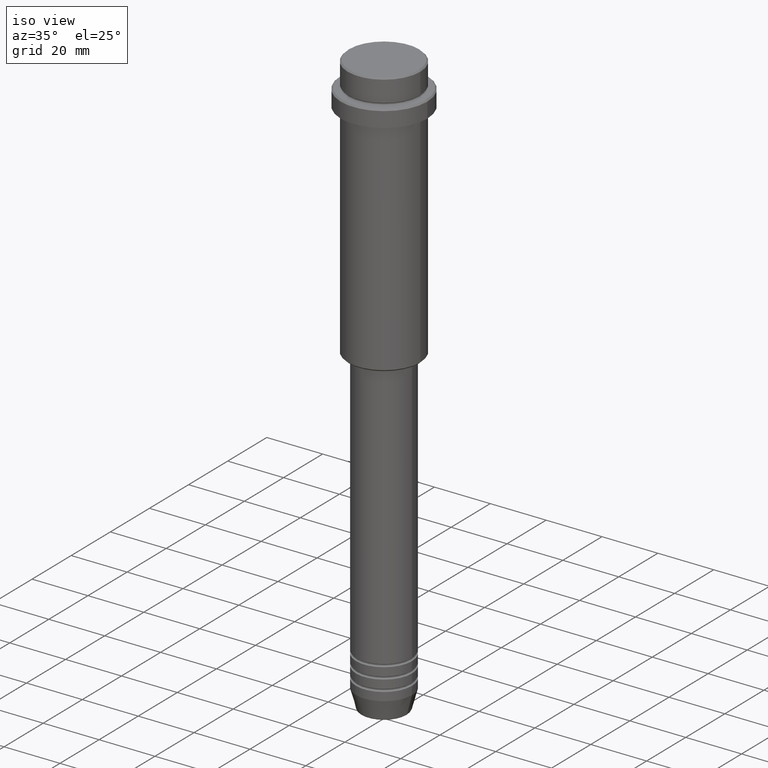
[diagram: clean part render]
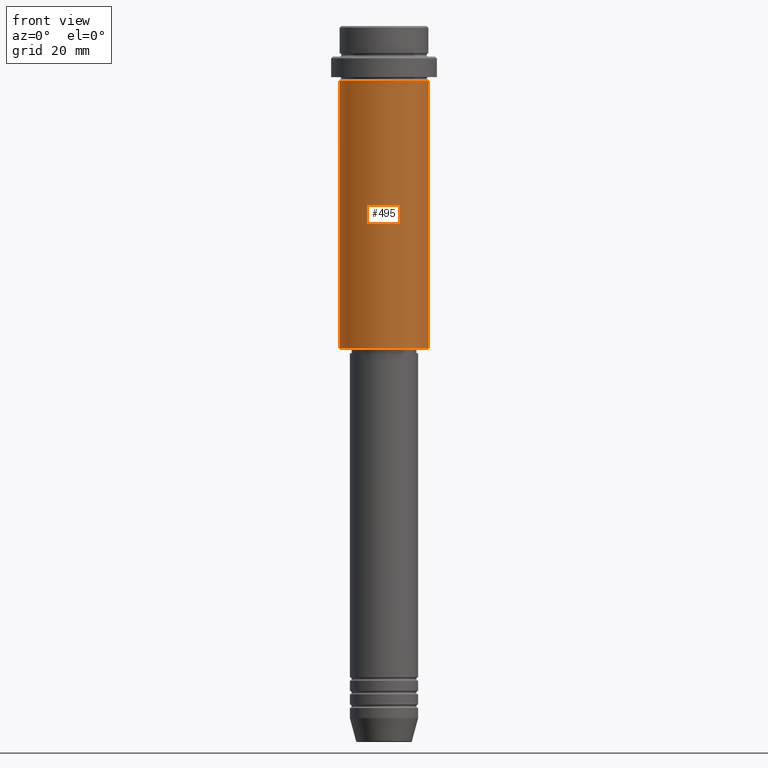
[diagram: tour spotlight — one face highlighted and labeled with its STEP entity id]
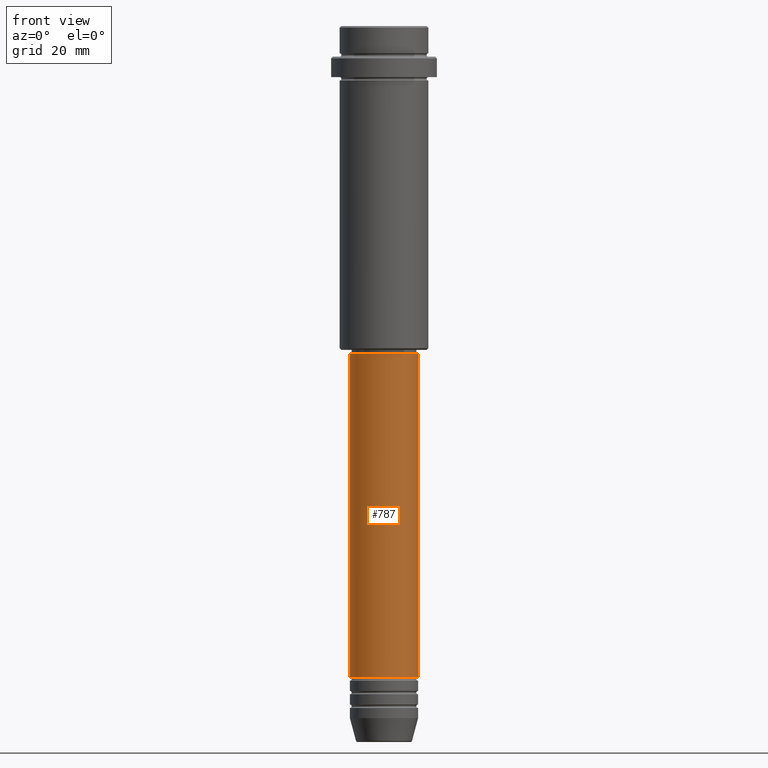
[diagram: tour spotlight — one face highlighted and labeled with its STEP entity id]
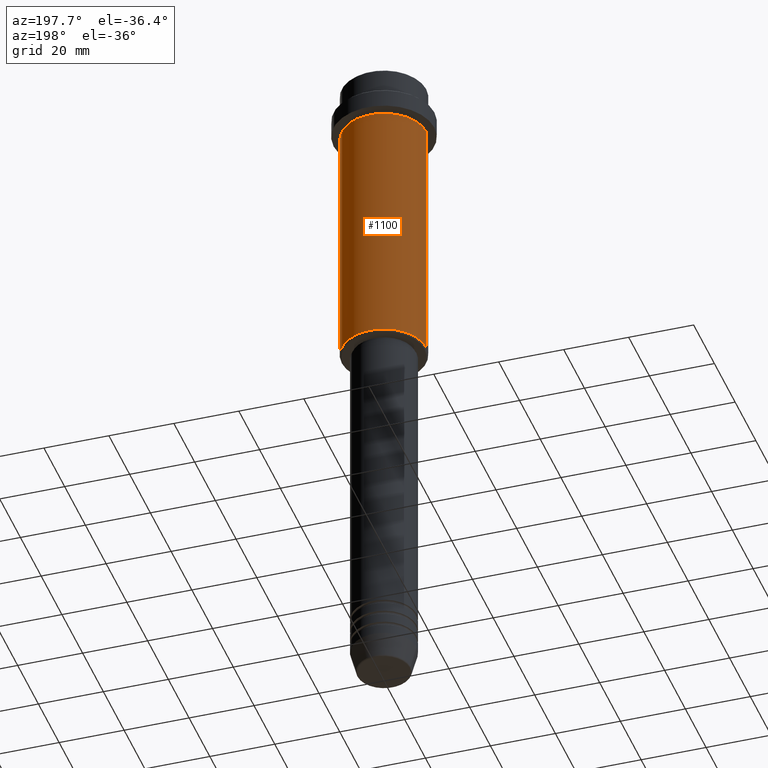
[diagram: tour spotlight — one face highlighted and labeled with its STEP entity id]
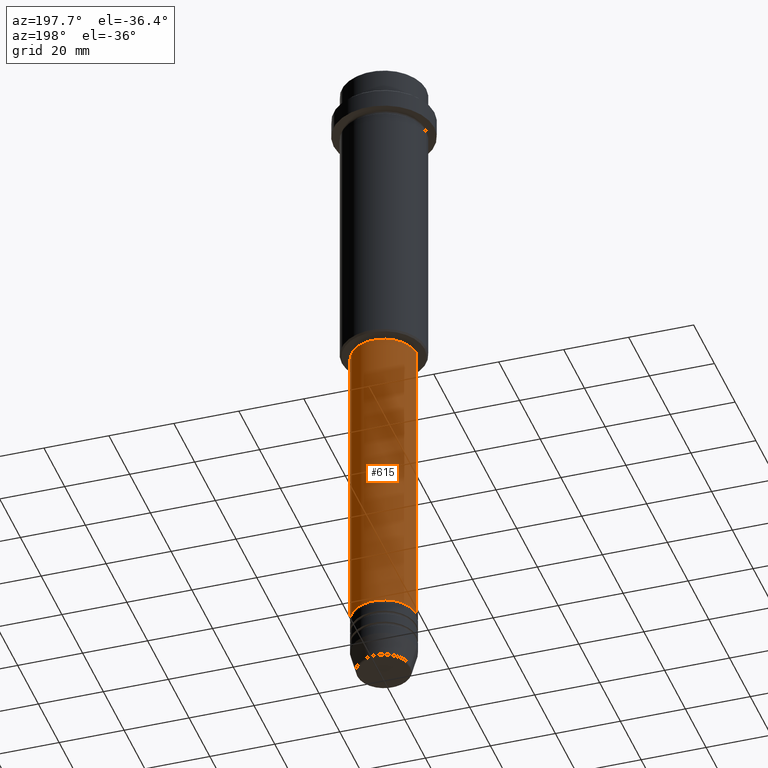
[diagram: tour spotlight — one face highlighted and labeled with its STEP entity id]
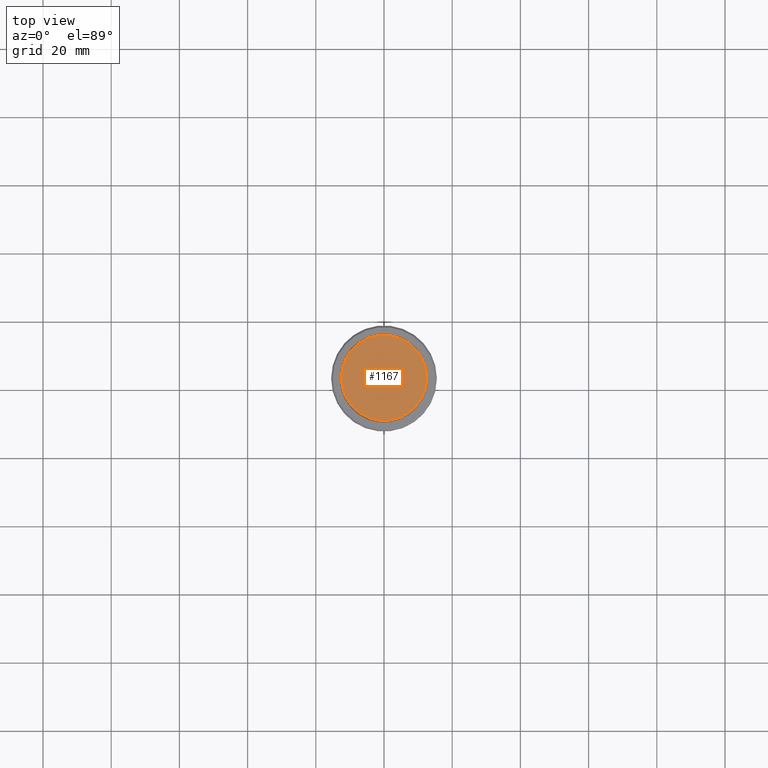
[diagram: tour spotlight — one face highlighted and labeled with its STEP entity id]
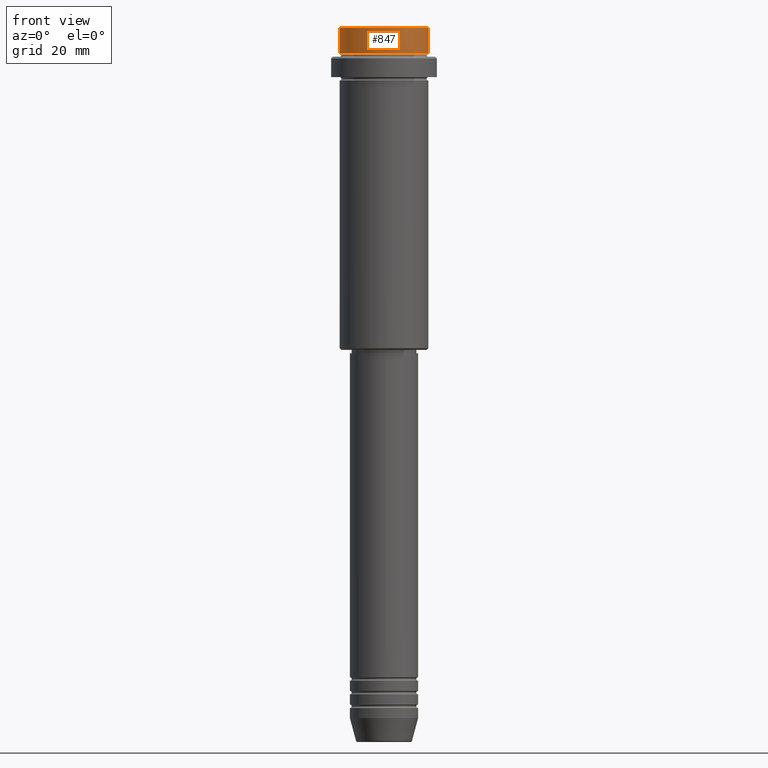
[diagram: tour spotlight — one face highlighted and labeled with its STEP entity id]
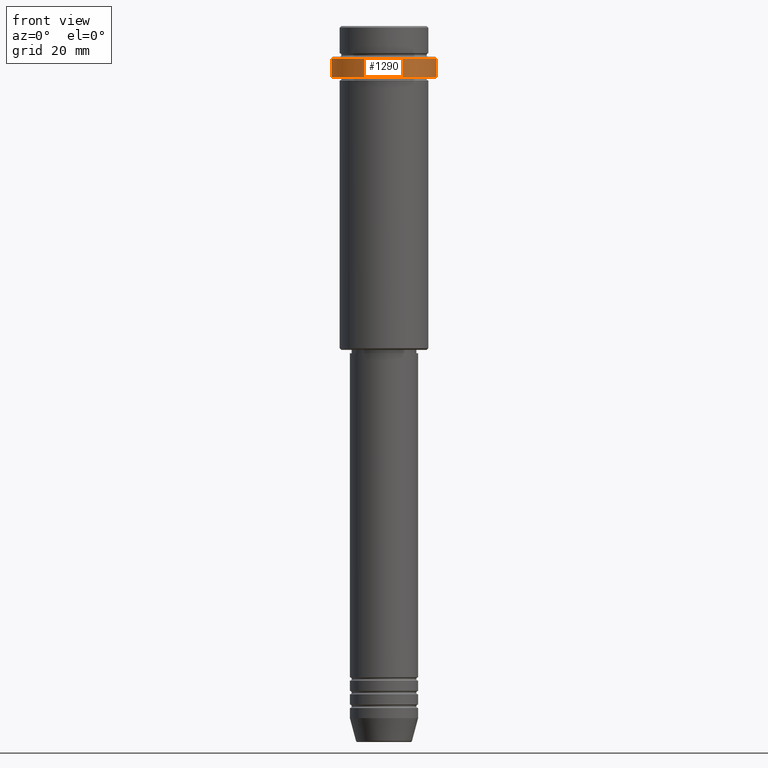
[diagram: tour spotlight — one face highlighted and labeled with its STEP entity id]
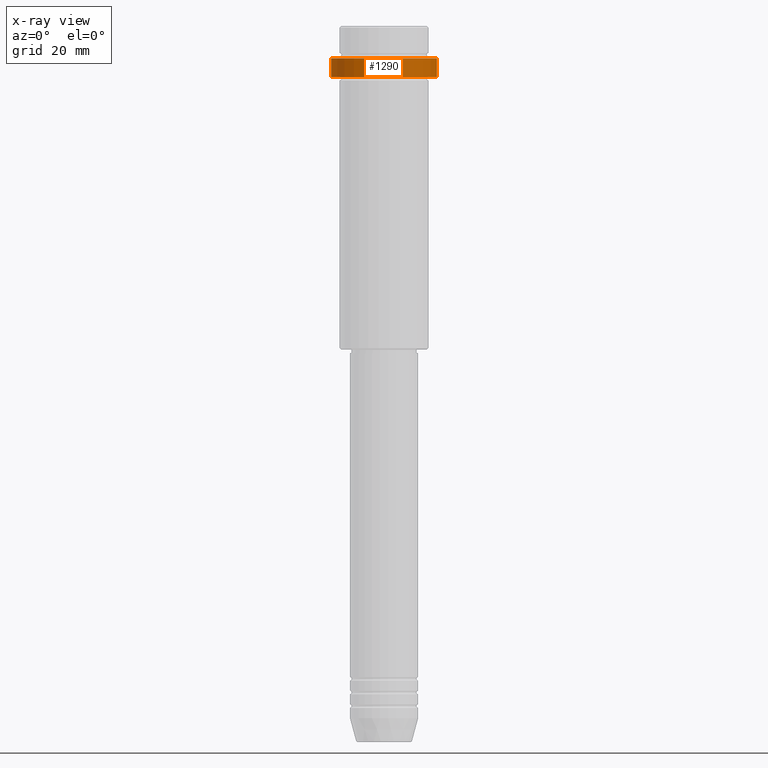
[diagram: x-ray of the same camera — body ghosted, this tour face saturated]
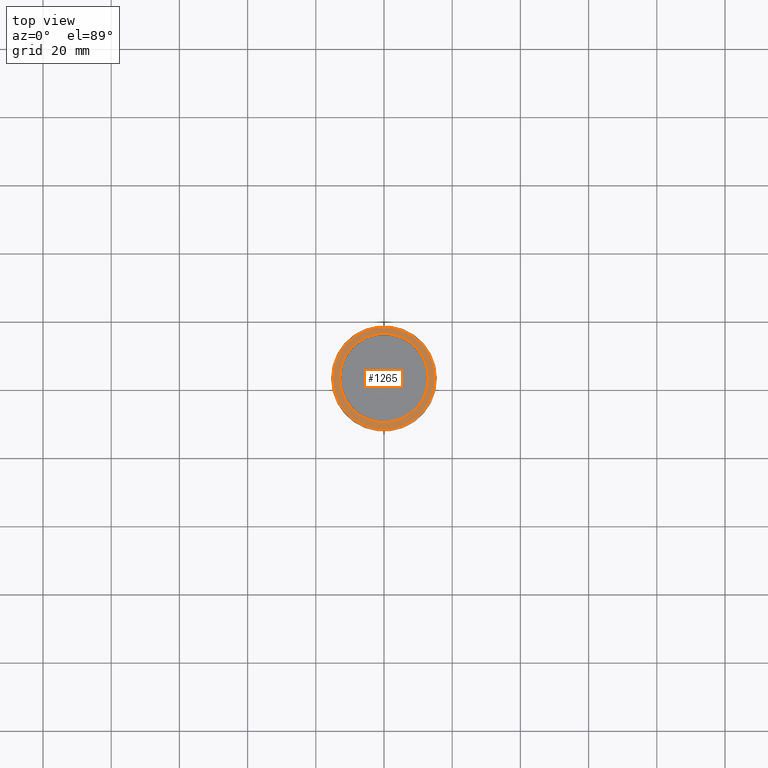
[diagram: tour spotlight — one face highlighted and labeled with its STEP entity id]
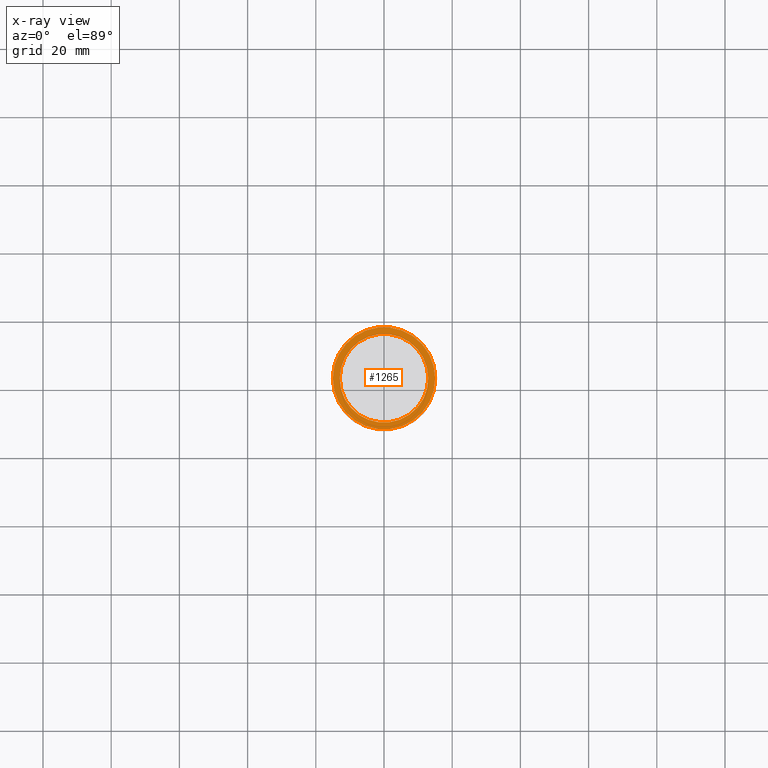
[diagram: x-ray of the same camera — body ghosted, this tour face saturated]
A machine part: a face-by-face anatomy tour. The part has 52 B-rep faces; the first image is the clean iso view, then the 8 largest visible faces are spotlighted one at a time (largest first), each with its STEP entity span.

Face 1 — front view, entity #495. In plain terms, the highlighted cylindrical surface (partial cylindrical patch) has radius 13 mm, axis along (-0, -0, 1).
Definition (entity closure, byte-faithful):
#8 = CIRCLE ( 'NONE', #791, 13.00000000000000000 ) ;
#16 = DIRECTION ( 'NONE',  ( -0.000000000000000000, -0.000000000000000000, 1.000000000000000000 ) ) ;
#54 = LINE ( 'NONE', #705, #61 ) ;
#61 = VECTOR ( 'NONE', #1355, 1000.000000000000000 ) ;
#73 = FACE_OUTER_BOUND ( 'NONE', #391, .T. ) ;
#131 = ORIENTED_EDGE ( 'NONE', *, *, #337, .F. ) ;
#149 = VERTEX_POINT ( 'NONE', #548 ) ;
#157 = DIRECTION ( 'NONE',  ( -0.000000000000000000, -0.000000000000000000, 1.000000000000000000 ) ) ;
#188 = VERTEX_POINT ( 'NONE', #871 ) ;
#223 = CARTESIAN_POINT ( 'NONE',  ( 0.000000000000000000, 0.000000000000000000, -16.00000000000000000 ) ) ;
#337 = EDGE_CURVE ( 'NONE', #149, #529, #54, .T. ) ;
#350 = EDGE_CURVE ( 'NONE', #520, #188, #494, .T. ) ;
#358 = ORIENTED_EDGE ( 'NONE', *, *, #1249, .T. ) ;
#384 = DIRECTION ( 'NONE',  ( 1.000000000000000000, 0.000000000000000000, 0.000000000000000000 ) ) ;
#391 = EDGE_LOOP ( 'NONE', ( #131, #358, #525, #737 ) ) ;
#483 = CARTESIAN_POINT ( 'NONE',  ( 0.000000000000000000, 0.000000000000000000, -94.49999999999994316 ) ) ;
#494 = LINE ( 'NONE', #1341, #608 ) ;
#495 = ADVANCED_FACE ( 'NONE', ( #73 ), #510, .T. ) ;
#496 = AXIS2_PLACEMENT_3D ( 'NONE', #223, #16, #384 ) ;
#510 = CYLINDRICAL_SURFACE ( 'NONE', #998, 13.00000000000000000 ) ;
#518 = CIRCLE ( 'NONE', #496, 13.00000000000000000 ) ;
#520 = VERTEX_POINT ( 'NONE', #1346 ) ;
#525 = ORIENTED_EDGE ( 'NONE', *, *, #350, .T. ) ;
#529 = VERTEX_POINT ( 'NONE', #1115 ) ;
#548 = CARTESIAN_POINT ( 'NONE',  ( -13.00000000000000000, 1.592040838891559095E-15, -94.49999999999994316 ) ) ;
#608 = VECTOR ( 'NONE', #926, 1000.000000000000000 ) ;
#642 = DIRECTION ( 'NONE',  ( -0.000000000000000000, -0.000000000000000000, 1.000000000000000000 ) ) ;
#705 = CARTESIAN_POINT ( 'NONE',  ( -13.00000000000000000, 1.592040838891559095E-15, 0.000000000000000000 ) ) ;
#737 = ORIENTED_EDGE ( 'NONE', *, *, #1097, .F. ) ;
#791 = AXIS2_PLACEMENT_3D ( 'NONE', #483, #157, #1264 ) ;
#871 = CARTESIAN_POINT ( 'NONE',  ( 13.00000000000000000, 0.000000000000000000, -16.00000000000000000 ) ) ;
#926 = DIRECTION ( 'NONE',  ( -0.000000000000000000, -0.000000000000000000, 1.000000000000000000 ) ) ;
#944 = CARTESIAN_POINT ( 'NONE',  ( 0.000000000000000000, 0.000000000000000000, 0.000000000000000000 ) ) ;
#998 = AXIS2_PLACEMENT_3D ( 'NONE', #944, #642, #1080 ) ;
#1080 = DIRECTION ( 'NONE',  ( 1.000000000000000000, 0.000000000000000000, 0.000000000000000000 ) ) ;
#1097 = EDGE_CURVE ( 'NONE', #529, #188, #518, .T. ) ;
#1115 = CARTESIAN_POINT ( 'NONE',  ( -13.00000000000000000, 1.592040838891559095E-15, -16.00000000000000000 ) ) ;
#1249 = EDGE_CURVE ( 'NONE', #149, #520, #8, .T. ) ;
#1264 = DIRECTION ( 'NONE',  ( -1.000000000000000000, 0.000000000000000000, 0.000000000000000000 ) ) ;
#1341 = CARTESIAN_POINT ( 'NONE',  ( 13.00000000000000000, 0.000000000000000000, 0.000000000000000000 ) ) ;
#1346 = CARTESIAN_POINT ( 'NONE',  ( 13.00000000000000000, 0.000000000000000000, -94.49999999999994316 ) ) ;
#1355 = DIRECTION ( 'NONE',  ( -0.000000000000000000, -0.000000000000000000, 1.000000000000000000 ) ) ;

Face 2 — front view, entity #787. In plain terms, the highlighted cylindrical surface (edge-blend (fillet) strip) has radius 10 mm, axis along (-0, -0, 1).
Definition (entity closure, byte-faithful):
#11 = CARTESIAN_POINT ( 'NONE',  ( 0.000000000000000000, 0.000000000000000000, -96.00000000000000000 ) ) ;
#83 = CIRCLE ( 'NONE', #1112, 10.00000000000000178 ) ;
#89 = EDGE_CURVE ( 'NONE', #576, #355, #83, .T. ) ;
#156 = ORIENTED_EDGE ( 'NONE', *, *, #735, .T. ) ;
#202 = ORIENTED_EDGE ( 'NONE', *, *, #1372, .T. ) ;
#239 = VECTOR ( 'NONE', #750, 1000.000000000000000 ) ;
#284 = VECTOR ( 'NONE', #1293, 1000.000000000000000 ) ;
#332 = DIRECTION ( 'NONE',  ( -0.000000000000000000, -0.000000000000000000, 1.000000000000000000 ) ) ;
#355 = VERTEX_POINT ( 'NONE', #382 ) ;
#382 = CARTESIAN_POINT ( 'NONE',  ( 10.00000000000000178, 0.000000000000000000, -96.00000000000000000 ) ) ;
#386 = DIRECTION ( 'NONE',  ( 1.000000000000000000, 0.000000000000000000, 0.000000000000000000 ) ) ;
#395 = AXIS2_PLACEMENT_3D ( 'NONE', #596, #603, #386 ) ;
#405 = CIRCLE ( 'NONE', #395, 10.00000000000000000 ) ;
#426 = EDGE_CURVE ( 'NONE', #1195, #576, #616, .T. ) ;
#576 = VERTEX_POINT ( 'NONE', #1006 ) ;
#596 = CARTESIAN_POINT ( 'NONE',  ( 0.000000000000000000, 0.000000000000000000, -190.9999999999999147 ) ) ;
#603 = DIRECTION ( 'NONE',  ( -0.000000000000000000, -0.000000000000000000, 1.000000000000000000 ) ) ;
#616 = LINE ( 'NONE', #869, #239 ) ;
#662 = CARTESIAN_POINT ( 'NONE',  ( 10.00000000000000178, 0.000000000000000000, 0.000000000000000000 ) ) ;
#699 = DIRECTION ( 'NONE',  ( 1.000000000000000000, 0.000000000000000000, 0.000000000000000000 ) ) ;
#730 = CYLINDRICAL_SURFACE ( 'NONE', #790, 10.00000000000000178 ) ;
#735 = EDGE_CURVE ( 'NONE', #1195, #1236, #405, .T. ) ;
#736 = ORIENTED_EDGE ( 'NONE', *, *, #89, .F. ) ;
#741 = LINE ( 'NONE', #662, #284 ) ;
#750 = DIRECTION ( 'NONE',  ( -0.000000000000000000, -0.000000000000000000, 1.000000000000000000 ) ) ;
#766 = EDGE_LOOP ( 'NONE', ( #936, #156, #202, #736 ) ) ;
#787 = ADVANCED_FACE ( 'NONE', ( #1030 ), #730, .T. ) ;
#790 = AXIS2_PLACEMENT_3D ( 'NONE', #1145, #1384, #699 ) ;
#831 = CARTESIAN_POINT ( 'NONE',  ( 10.00000000000000000, 0.000000000000000000, -190.9999999999999147 ) ) ;
#869 = CARTESIAN_POINT ( 'NONE',  ( -10.00000000000000178, 1.224646799147353454E-15, 0.000000000000000000 ) ) ;
#935 = CARTESIAN_POINT ( 'NONE',  ( -10.00000000000000000, 1.224646799147353256E-15, -190.9999999999999147 ) ) ;
#936 = ORIENTED_EDGE ( 'NONE', *, *, #426, .F. ) ;
#1006 = CARTESIAN_POINT ( 'NONE',  ( -10.00000000000000178, 1.224646799147353454E-15, -96.00000000000000000 ) ) ;
#1030 = FACE_OUTER_BOUND ( 'NONE', #766, .T. ) ;
#1086 = DIRECTION ( 'NONE',  ( 1.000000000000000000, 0.000000000000000000, 0.000000000000000000 ) ) ;
#1112 = AXIS2_PLACEMENT_3D ( 'NONE', #11, #332, #1086 ) ;
#1145 = CARTESIAN_POINT ( 'NONE',  ( 0.000000000000000000, 0.000000000000000000, 0.000000000000000000 ) ) ;
#1195 = VERTEX_POINT ( 'NONE', #935 ) ;
#1236 = VERTEX_POINT ( 'NONE', #831 ) ;
#1293 = DIRECTION ( 'NONE',  ( -0.000000000000000000, -0.000000000000000000, 1.000000000000000000 ) ) ;
#1372 = EDGE_CURVE ( 'NONE', #1236, #355, #741, .T. ) ;
#1384 = DIRECTION ( 'NONE',  ( -0.000000000000000000, -0.000000000000000000, 1.000000000000000000 ) ) ;

Face 3 — auxiliary view, entity #1100. In plain terms, the highlighted cylindrical surface (partial cylindrical patch) has radius 13 mm, axis along (-0, -0, 1).
Definition (entity closure, byte-faithful):
#13 = AXIS2_PLACEMENT_3D ( 'NONE', #938, #438, #1207 ) ;
#54 = LINE ( 'NONE', #705, #61 ) ;
#59 = EDGE_CURVE ( 'NONE', #520, #149, #1200, .T. ) ;
#60 = AXIS2_PLACEMENT_3D ( 'NONE', #917, #826, #1254 ) ;
#61 = VECTOR ( 'NONE', #1355, 1000.000000000000000 ) ;
#75 = FACE_OUTER_BOUND ( 'NONE', #1399, .T. ) ;
#79 = ORIENTED_EDGE ( 'NONE', *, *, #350, .F. ) ;
#98 = DIRECTION ( 'NONE',  ( -0.000000000000000000, -0.000000000000000000, 1.000000000000000000 ) ) ;
#149 = VERTEX_POINT ( 'NONE', #548 ) ;
#188 = VERTEX_POINT ( 'NONE', #871 ) ;
#337 = EDGE_CURVE ( 'NONE', #149, #529, #54, .T. ) ;
#350 = EDGE_CURVE ( 'NONE', #520, #188, #494, .T. ) ;
#409 = EDGE_CURVE ( 'NONE', #188, #529, #610, .T. ) ;
#438 = DIRECTION ( 'NONE',  ( -0.000000000000000000, -0.000000000000000000, 1.000000000000000000 ) ) ;
#494 = LINE ( 'NONE', #1341, #608 ) ;
#517 = ORIENTED_EDGE ( 'NONE', *, *, #337, .T. ) ;
#520 = VERTEX_POINT ( 'NONE', #1346 ) ;
#529 = VERTEX_POINT ( 'NONE', #1115 ) ;
#548 = CARTESIAN_POINT ( 'NONE',  ( -13.00000000000000000, 1.592040838891559095E-15, -94.49999999999994316 ) ) ;
#570 = ORIENTED_EDGE ( 'NONE', *, *, #409, .F. ) ;
#608 = VECTOR ( 'NONE', #926, 1000.000000000000000 ) ;
#610 = CIRCLE ( 'NONE', #13, 13.00000000000000000 ) ;
#705 = CARTESIAN_POINT ( 'NONE',  ( -13.00000000000000000, 1.592040838891559095E-15, 0.000000000000000000 ) ) ;
#820 = CYLINDRICAL_SURFACE ( 'NONE', #60, 13.00000000000000000 ) ;
#826 = DIRECTION ( 'NONE',  ( -0.000000000000000000, -0.000000000000000000, 1.000000000000000000 ) ) ;
#871 = CARTESIAN_POINT ( 'NONE',  ( 13.00000000000000000, 0.000000000000000000, -16.00000000000000000 ) ) ;
#907 = AXIS2_PLACEMENT_3D ( 'NONE', #1072, #98, #1054 ) ;
#917 = CARTESIAN_POINT ( 'NONE',  ( 0.000000000000000000, 0.000000000000000000, 0.000000000000000000 ) ) ;
#918 = ORIENTED_EDGE ( 'NONE', *, *, #59, .T. ) ;
#926 = DIRECTION ( 'NONE',  ( -0.000000000000000000, -0.000000000000000000, 1.000000000000000000 ) ) ;
#938 = CARTESIAN_POINT ( 'NONE',  ( 0.000000000000000000, 0.000000000000000000, -16.00000000000000000 ) ) ;
#1054 = DIRECTION ( 'NONE',  ( -1.000000000000000000, 0.000000000000000000, 0.000000000000000000 ) ) ;
#1072 = CARTESIAN_POINT ( 'NONE',  ( 0.000000000000000000, 0.000000000000000000, -94.49999999999994316 ) ) ;
#1100 = ADVANCED_FACE ( 'NONE', ( #75 ), #820, .T. ) ;
#1115 = CARTESIAN_POINT ( 'NONE',  ( -13.00000000000000000, 1.592040838891559095E-15, -16.00000000000000000 ) ) ;
#1200 = CIRCLE ( 'NONE', #907, 13.00000000000000000 ) ;
#1207 = DIRECTION ( 'NONE',  ( 1.000000000000000000, 0.000000000000000000, 0.000000000000000000 ) ) ;
#1254 = DIRECTION ( 'NONE',  ( 1.000000000000000000, 0.000000000000000000, 0.000000000000000000 ) ) ;
#1341 = CARTESIAN_POINT ( 'NONE',  ( 13.00000000000000000, 0.000000000000000000, 0.000000000000000000 ) ) ;
#1346 = CARTESIAN_POINT ( 'NONE',  ( 13.00000000000000000, 0.000000000000000000, -94.49999999999994316 ) ) ;
#1355 = DIRECTION ( 'NONE',  ( -0.000000000000000000, -0.000000000000000000, 1.000000000000000000 ) ) ;
#1399 = EDGE_LOOP ( 'NONE', ( #918, #517, #570, #79 ) ) ;

Face 4 — auxiliary view, entity #615. In plain terms, the highlighted cylindrical surface (edge-blend (fillet) strip) has radius 10 mm, axis along (-0, -0, 1).
Definition (entity closure, byte-faithful):
#76 = EDGE_LOOP ( 'NONE', ( #599, #268, #253, #222 ) ) ;
#214 = AXIS2_PLACEMENT_3D ( 'NONE', #693, #445, #1128 ) ;
#222 = ORIENTED_EDGE ( 'NONE', *, *, #1372, .F. ) ;
#231 = DIRECTION ( 'NONE',  ( 1.000000000000000000, 0.000000000000000000, 0.000000000000000000 ) ) ;
#239 = VECTOR ( 'NONE', #750, 1000.000000000000000 ) ;
#250 = CYLINDRICAL_SURFACE ( 'NONE', #214, 10.00000000000000178 ) ;
#253 = ORIENTED_EDGE ( 'NONE', *, *, #687, .F. ) ;
#262 = CIRCLE ( 'NONE', #878, 10.00000000000000178 ) ;
#268 = ORIENTED_EDGE ( 'NONE', *, *, #426, .T. ) ;
#284 = VECTOR ( 'NONE', #1293, 1000.000000000000000 ) ;
#355 = VERTEX_POINT ( 'NONE', #382 ) ;
#382 = CARTESIAN_POINT ( 'NONE',  ( 10.00000000000000178, 0.000000000000000000, -96.00000000000000000 ) ) ;
#426 = EDGE_CURVE ( 'NONE', #1195, #576, #616, .T. ) ;
#445 = DIRECTION ( 'NONE',  ( -0.000000000000000000, -0.000000000000000000, 1.000000000000000000 ) ) ;
#576 = VERTEX_POINT ( 'NONE', #1006 ) ;
#599 = ORIENTED_EDGE ( 'NONE', *, *, #997, .T. ) ;
#615 = ADVANCED_FACE ( 'NONE', ( #1122 ), #250, .T. ) ;
#616 = LINE ( 'NONE', #869, #239 ) ;
#662 = CARTESIAN_POINT ( 'NONE',  ( 10.00000000000000178, 0.000000000000000000, 0.000000000000000000 ) ) ;
#687 = EDGE_CURVE ( 'NONE', #355, #576, #262, .T. ) ;
#693 = CARTESIAN_POINT ( 'NONE',  ( 0.000000000000000000, 0.000000000000000000, 0.000000000000000000 ) ) ;
#714 = DIRECTION ( 'NONE',  ( 1.000000000000000000, 0.000000000000000000, 0.000000000000000000 ) ) ;
#740 = CIRCLE ( 'NONE', #994, 10.00000000000000000 ) ;
#741 = LINE ( 'NONE', #662, #284 ) ;
#750 = DIRECTION ( 'NONE',  ( -0.000000000000000000, -0.000000000000000000, 1.000000000000000000 ) ) ;
#831 = CARTESIAN_POINT ( 'NONE',  ( 10.00000000000000000, 0.000000000000000000, -190.9999999999999147 ) ) ;
#869 = CARTESIAN_POINT ( 'NONE',  ( -10.00000000000000178, 1.224646799147353454E-15, 0.000000000000000000 ) ) ;
#878 = AXIS2_PLACEMENT_3D ( 'NONE', #1051, #930, #714 ) ;
#930 = DIRECTION ( 'NONE',  ( -0.000000000000000000, -0.000000000000000000, 1.000000000000000000 ) ) ;
#935 = CARTESIAN_POINT ( 'NONE',  ( -10.00000000000000000, 1.224646799147353256E-15, -190.9999999999999147 ) ) ;
#994 = AXIS2_PLACEMENT_3D ( 'NONE', #1003, #1206, #231 ) ;
#997 = EDGE_CURVE ( 'NONE', #1236, #1195, #740, .T. ) ;
#1003 = CARTESIAN_POINT ( 'NONE',  ( 0.000000000000000000, 0.000000000000000000, -190.9999999999999147 ) ) ;
#1006 = CARTESIAN_POINT ( 'NONE',  ( -10.00000000000000178, 1.224646799147353454E-15, -96.00000000000000000 ) ) ;
#1051 = CARTESIAN_POINT ( 'NONE',  ( 0.000000000000000000, 0.000000000000000000, -96.00000000000000000 ) ) ;
#1122 = FACE_OUTER_BOUND ( 'NONE', #76, .T. ) ;
#1128 = DIRECTION ( 'NONE',  ( 1.000000000000000000, 0.000000000000000000, 0.000000000000000000 ) ) ;
#1195 = VERTEX_POINT ( 'NONE', #935 ) ;
#1206 = DIRECTION ( 'NONE',  ( -0.000000000000000000, -0.000000000000000000, 1.000000000000000000 ) ) ;
#1236 = VERTEX_POINT ( 'NONE', #831 ) ;
#1293 = DIRECTION ( 'NONE',  ( -0.000000000000000000, -0.000000000000000000, 1.000000000000000000 ) ) ;
#1372 = EDGE_CURVE ( 'NONE', #1236, #355, #741, .T. ) ;

Face 5 — top view, entity #1167. In plain terms, the highlighted planar face has unit normal (0, -0, 1).
Definition (entity closure, byte-faithful):
#1 = CARTESIAN_POINT ( 'NONE',  ( 0.000000000000000000, 0.000000000000000000, 0.000000000000000000 ) ) ;
#63 = DIRECTION ( 'NONE',  ( 1.000000000000000000, 0.000000000000000000, 0.000000000000000000 ) ) ;
#77 = CARTESIAN_POINT ( 'NONE',  ( 0.000000000000000000, 0.000000000000000000, 0.000000000000000000 ) ) ;
#151 = AXIS2_PLACEMENT_3D ( 'NONE', #77, #1057, #63 ) ;
#152 = CARTESIAN_POINT ( 'NONE',  ( 0.000000000000000000, 0.000000000000000000, 0.000000000000000000 ) ) ;
#601 = FACE_OUTER_BOUND ( 'NONE', #1305, .T. ) ;
#611 = CARTESIAN_POINT ( 'NONE',  ( 12.49999999999998579, 1.561424668912874125E-15, 0.000000000000000000 ) ) ;
#667 = EDGE_CURVE ( 'NONE', #1142, #1014, #771, .T. ) ;
#771 = CIRCLE ( 'NONE', #151, 12.49999999999998579 ) ;
#858 = AXIS2_PLACEMENT_3D ( 'NONE', #152, #923, #1049 ) ;
#923 = DIRECTION ( 'NONE',  ( 0.000000000000000000, -0.000000000000000000, 1.000000000000000000 ) ) ;
#989 = CARTESIAN_POINT ( 'NONE',  ( -12.49999999999998579, 0.000000000000000000, 0.000000000000000000 ) ) ;
#1014 = VERTEX_POINT ( 'NONE', #989 ) ;
#1039 = PLANE ( 'NONE',  #858 ) ;
#1040 = ORIENTED_EDGE ( 'NONE', *, *, #667, .T. ) ;
#1049 = DIRECTION ( 'NONE',  ( 1.000000000000000000, 0.000000000000000000, 0.000000000000000000 ) ) ;
#1057 = DIRECTION ( 'NONE',  ( -0.000000000000000000, -0.000000000000000000, 1.000000000000000000 ) ) ;
#1142 = VERTEX_POINT ( 'NONE', #611 ) ;
#1167 = ADVANCED_FACE ( 'NONE', ( #601 ), #1039, .T. ) ;
#1291 = AXIS2_PLACEMENT_3D ( 'NONE', #1, #1406, #1396 ) ;
#1305 = EDGE_LOOP ( 'NONE', ( #1361, #1040 ) ) ;
#1361 = ORIENTED_EDGE ( 'NONE', *, *, #1403, .T. ) ;
#1364 = CIRCLE ( 'NONE', #1291, 12.49999999999998579 ) ;
#1396 = DIRECTION ( 'NONE',  ( 1.000000000000000000, 0.000000000000000000, 0.000000000000000000 ) ) ;
#1403 = EDGE_CURVE ( 'NONE', #1014, #1142, #1364, .T. ) ;
#1406 = DIRECTION ( 'NONE',  ( -0.000000000000000000, -0.000000000000000000, 1.000000000000000000 ) ) ;

Face 6 — front view, entity #847. In plain terms, the highlighted cylindrical surface (partial cylindrical patch) has radius 13 mm, axis along (-0, -0, 1).
Definition (entity closure, byte-faithful):
#46 = CARTESIAN_POINT ( 'NONE',  ( -12.99999999999999822, 1.592040838891558898E-15, -0.5000000000000316414 ) ) ;
#49 = DIRECTION ( 'NONE',  ( -0.000000000000000000, -0.000000000000000000, 1.000000000000000000 ) ) ;
#84 = AXIS2_PLACEMENT_3D ( 'NONE', #963, #1093, #1186 ) ;
#181 = ORIENTED_EDGE ( 'NONE', *, *, #294, .T. ) ;
#187 = ORIENTED_EDGE ( 'NONE', *, *, #900, .T. ) ;
#294 = EDGE_CURVE ( 'NONE', #873, #827, #1241, .T. ) ;
#295 = EDGE_CURVE ( 'NONE', #1110, #1239, #462, .T. ) ;
#306 = DIRECTION ( 'NONE',  ( -0.000000000000000000, -0.000000000000000000, 1.000000000000000000 ) ) ;
#421 = CARTESIAN_POINT ( 'NONE',  ( 12.99999999999999822, 0.000000000000000000, -7.999999999999998224 ) ) ;
#462 = LINE ( 'NONE', #1037, #702 ) ;
#575 = DIRECTION ( 'NONE',  ( -0.000000000000000000, -0.000000000000000000, 1.000000000000000000 ) ) ;
#618 = CARTESIAN_POINT ( 'NONE',  ( -12.99999999999999822, 1.592040838891558898E-15, -7.999999999999998224 ) ) ;
#625 = CYLINDRICAL_SURFACE ( 'NONE', #651, 12.99999999999999822 ) ;
#651 = AXIS2_PLACEMENT_3D ( 'NONE', #760, #306, #755 ) ;
#681 = VECTOR ( 'NONE', #49, 1000.000000000000000 ) ;
#702 = VECTOR ( 'NONE', #575, 1000.000000000000000 ) ;
#715 = CARTESIAN_POINT ( 'NONE',  ( 12.99999999999999822, 0.000000000000000000, 0.000000000000000000 ) ) ;
#722 = CIRCLE ( 'NONE', #765, 12.99999999999999822 ) ;
#748 = FACE_OUTER_BOUND ( 'NONE', #1334, .T. ) ;
#755 = DIRECTION ( 'NONE',  ( 1.000000000000000000, 0.000000000000000000, 0.000000000000000000 ) ) ;
#760 = CARTESIAN_POINT ( 'NONE',  ( 0.000000000000000000, 0.000000000000000000, 0.000000000000000000 ) ) ;
#765 = AXIS2_PLACEMENT_3D ( 'NONE', #957, #1190, #979 ) ;
#827 = VERTEX_POINT ( 'NONE', #1286 ) ;
#847 = ADVANCED_FACE ( 'NONE', ( #748 ), #625, .T. ) ;
#873 = VERTEX_POINT ( 'NONE', #421 ) ;
#889 = ORIENTED_EDGE ( 'NONE', *, *, #295, .F. ) ;
#900 = EDGE_CURVE ( 'NONE', #1110, #873, #722, .T. ) ;
#957 = CARTESIAN_POINT ( 'NONE',  ( 0.000000000000000000, 0.000000000000000000, -7.999999999999998224 ) ) ;
#963 = CARTESIAN_POINT ( 'NONE',  ( 0.000000000000000000, 0.000000000000000000, -0.5000000000000316414 ) ) ;
#979 = DIRECTION ( 'NONE',  ( 1.000000000000000000, 0.000000000000000000, 0.000000000000000000 ) ) ;
#1035 = ORIENTED_EDGE ( 'NONE', *, *, #1398, .T. ) ;
#1037 = CARTESIAN_POINT ( 'NONE',  ( -12.99999999999999822, 1.592040838891558898E-15, 0.000000000000000000 ) ) ;
#1093 = DIRECTION ( 'NONE',  ( 0.000000000000000000, 0.000000000000000000, -1.000000000000000000 ) ) ;
#1110 = VERTEX_POINT ( 'NONE', #618 ) ;
#1186 = DIRECTION ( 'NONE',  ( 1.000000000000000000, 0.000000000000000000, 0.000000000000000000 ) ) ;
#1190 = DIRECTION ( 'NONE',  ( -0.000000000000000000, -0.000000000000000000, 1.000000000000000000 ) ) ;
#1239 = VERTEX_POINT ( 'NONE', #46 ) ;
#1241 = LINE ( 'NONE', #715, #681 ) ;
#1250 = CIRCLE ( 'NONE', #84, 12.99999999999999822 ) ;
#1286 = CARTESIAN_POINT ( 'NONE',  ( 12.99999999999999822, 0.000000000000000000, -0.5000000000000316414 ) ) ;
#1334 = EDGE_LOOP ( 'NONE', ( #889, #187, #181, #1035 ) ) ;
#1398 = EDGE_CURVE ( 'NONE', #827, #1239, #1250, .T. ) ;

Face 7 — front view, entity #1290. An x-ray twin of the same camera follows (body ghosted, this face saturated) — the face is partly hidden behind the body. In plain terms, the highlighted cylindrical surface (partial cylindrical patch) has radius 15.5 mm, axis along (-0, -0, 1).
Definition (entity closure, byte-faithful):
#111 = CARTESIAN_POINT ( 'NONE',  ( -15.50000000000000000, 1.898202538678397557E-15, -9.500000000000014211 ) ) ;
#130 = EDGE_CURVE ( 'NONE', #588, #774, #674, .T. ) ;
#145 = EDGE_CURVE ( 'NONE', #809, #830, #216, .T. ) ;
#182 = DIRECTION ( 'NONE',  ( -0.000000000000000000, -0.000000000000000000, 1.000000000000000000 ) ) ;
#216 = LINE ( 'NONE', #1413, #329 ) ;
#221 = DIRECTION ( 'NONE',  ( -0.000000000000000000, -0.000000000000000000, 1.000000000000000000 ) ) ;
#290 = CARTESIAN_POINT ( 'NONE',  ( 0.000000000000000000, 0.000000000000000000, 0.000000000000000000 ) ) ;
#329 = VECTOR ( 'NONE', #555, 1000.000000000000000 ) ;
#371 = CARTESIAN_POINT ( 'NONE',  ( 15.50000000000000000, 0.000000000000000000, -9.500000000000014211 ) ) ;
#397 = DIRECTION ( 'NONE',  ( 1.000000000000000000, 0.000000000000000000, 0.000000000000000000 ) ) ;
#444 = CIRCLE ( 'NONE', #1082, 15.50000000000000000 ) ;
#482 = ORIENTED_EDGE ( 'NONE', *, *, #1282, .T. ) ;
#513 = FACE_OUTER_BOUND ( 'NONE', #1171, .T. ) ;
#555 = DIRECTION ( 'NONE',  ( -0.000000000000000000, -0.000000000000000000, 1.000000000000000000 ) ) ;
#588 = VERTEX_POINT ( 'NONE', #1213 ) ;
#613 = ORIENTED_EDGE ( 'NONE', *, *, #849, .T. ) ;
#623 = DIRECTION ( 'NONE',  ( 1.000000000000000000, 0.000000000000000000, 0.000000000000000000 ) ) ;
#635 = DIRECTION ( 'NONE',  ( 0.000000000000000000, 0.000000000000000000, -1.000000000000000000 ) ) ;
#647 = CARTESIAN_POINT ( 'NONE',  ( -15.50000000000000000, 1.898202538678397557E-15, -15.00000000000000178 ) ) ;
#674 = LINE ( 'NONE', #1209, #1179 ) ;
#732 = CARTESIAN_POINT ( 'NONE',  ( 0.000000000000000000, 0.000000000000000000, -15.00000000000000178 ) ) ;
#774 = VERTEX_POINT ( 'NONE', #371 ) ;
#809 = VERTEX_POINT ( 'NONE', #647 ) ;
#814 = AXIS2_PLACEMENT_3D ( 'NONE', #732, #182, #623 ) ;
#830 = VERTEX_POINT ( 'NONE', #111 ) ;
#849 = EDGE_CURVE ( 'NONE', #774, #830, #444, .T. ) ;
#874 = CARTESIAN_POINT ( 'NONE',  ( 0.000000000000000000, 0.000000000000000000, -9.500000000000014211 ) ) ;
#885 = ORIENTED_EDGE ( 'NONE', *, *, #145, .F. ) ;
#965 = ORIENTED_EDGE ( 'NONE', *, *, #130, .T. ) ;
#1060 = CYLINDRICAL_SURFACE ( 'NONE', #1333, 15.50000000000000000 ) ;
#1082 = AXIS2_PLACEMENT_3D ( 'NONE', #874, #635, #1394 ) ;
#1158 = CIRCLE ( 'NONE', #814, 15.50000000000000000 ) ;
#1171 = EDGE_LOOP ( 'NONE', ( #885, #482, #965, #613 ) ) ;
#1179 = VECTOR ( 'NONE', #221, 1000.000000000000000 ) ;
#1209 = CARTESIAN_POINT ( 'NONE',  ( 15.50000000000000000, 0.000000000000000000, 0.000000000000000000 ) ) ;
#1213 = CARTESIAN_POINT ( 'NONE',  ( 15.50000000000000000, 0.000000000000000000, -15.00000000000000178 ) ) ;
#1282 = EDGE_CURVE ( 'NONE', #809, #588, #1158, .T. ) ;
#1290 = ADVANCED_FACE ( 'NONE', ( #513 ), #1060, .T. ) ;
#1333 = AXIS2_PLACEMENT_3D ( 'NONE', #290, #1381, #397 ) ;
#1381 = DIRECTION ( 'NONE',  ( -0.000000000000000000, -0.000000000000000000, 1.000000000000000000 ) ) ;
#1394 = DIRECTION ( 'NONE',  ( 1.000000000000000000, 0.000000000000000000, 0.000000000000000000 ) ) ;
#1413 = CARTESIAN_POINT ( 'NONE',  ( -15.50000000000000000, 1.898202538678397557E-15, 0.000000000000000000 ) ) ;

Face 8 — top view, entity #1265. An x-ray twin of the same camera follows (body ghosted, this face saturated) — the face is partly hidden behind the body. In plain terms, the highlighted planar face has unit normal (0, -0, 1).
Definition (entity closure, byte-faithful):
#3 = EDGE_CURVE ( 'NONE', #99, #685, #124, .T. ) ;
#9 = CIRCLE ( 'NONE', #882, 14.99999999999998579 ) ;
#29 = EDGE_LOOP ( 'NONE', ( #475, #379 ) ) ;
#45 = EDGE_CURVE ( 'NONE', #781, #370, #9, .T. ) ;
#51 = FACE_BOUND ( 'NONE', #29, .T. ) ;
#99 = VERTEX_POINT ( 'NONE', #1001 ) ;
#112 = DIRECTION ( 'NONE',  ( 1.000000000000000000, 0.000000000000000000, 0.000000000000000000 ) ) ;
#124 = CIRCLE ( 'NONE', #931, 12.99999999999999467 ) ;
#165 = CARTESIAN_POINT ( 'NONE',  ( 12.99999999999999467, 0.000000000000000000, -9.000000000000001776 ) ) ;
#260 = AXIS2_PLACEMENT_3D ( 'NONE', #897, #782, #551 ) ;
#302 = DIRECTION ( 'NONE',  ( 1.000000000000000000, 0.000000000000000000, 0.000000000000000000 ) ) ;
#323 = ORIENTED_EDGE ( 'NONE', *, *, #45, .T. ) ;
#370 = VERTEX_POINT ( 'NONE', #902 ) ;
#379 = ORIENTED_EDGE ( 'NONE', *, *, #3, .T. ) ;
#475 = ORIENTED_EDGE ( 'NONE', *, *, #1024, .T. ) ;
#480 = EDGE_CURVE ( 'NONE', #370, #781, #1022, .T. ) ;
#490 = CARTESIAN_POINT ( 'NONE',  ( 14.99999999999998579, 1.867586368699712587E-15, -9.000000000000001776 ) ) ;
#523 = DIRECTION ( 'NONE',  ( 1.000000000000000000, 0.000000000000000000, 0.000000000000000000 ) ) ;
#551 = DIRECTION ( 'NONE',  ( 1.000000000000000000, 0.000000000000000000, 0.000000000000000000 ) ) ;
#617 = DIRECTION ( 'NONE',  ( -0.000000000000000000, -0.000000000000000000, 1.000000000000000000 ) ) ;
#653 = CIRCLE ( 'NONE', #260, 12.99999999999999467 ) ;
#685 = VERTEX_POINT ( 'NONE', #165 ) ;
#781 = VERTEX_POINT ( 'NONE', #490 ) ;
#782 = DIRECTION ( 'NONE',  ( 0.000000000000000000, 0.000000000000000000, -1.000000000000000000 ) ) ;
#783 = EDGE_LOOP ( 'NONE', ( #898, #323 ) ) ;
#810 = FACE_OUTER_BOUND ( 'NONE', #783, .T. ) ;
#829 = CARTESIAN_POINT ( 'NONE',  ( 0.000000000000000000, 0.000000000000000000, -9.000000000000001776 ) ) ;
#843 = DIRECTION ( 'NONE',  ( 1.000000000000000000, 0.000000000000000000, 0.000000000000000000 ) ) ;
#851 = CARTESIAN_POINT ( 'NONE',  ( 0.000000000000000000, 0.000000000000000000, -9.000000000000001776 ) ) ;
#882 = AXIS2_PLACEMENT_3D ( 'NONE', #1263, #617, #302 ) ;
#897 = CARTESIAN_POINT ( 'NONE',  ( 0.000000000000000000, 0.000000000000000000, -9.000000000000001776 ) ) ;
#898 = ORIENTED_EDGE ( 'NONE', *, *, #480, .T. ) ;
#902 = CARTESIAN_POINT ( 'NONE',  ( -14.99999999999998579, 0.000000000000000000, -9.000000000000001776 ) ) ;
#931 = AXIS2_PLACEMENT_3D ( 'NONE', #851, #1077, #523 ) ;
#946 = DIRECTION ( 'NONE',  ( 0.000000000000000000, -0.000000000000000000, 1.000000000000000000 ) ) ;
#972 = AXIS2_PLACEMENT_3D ( 'NONE', #1276, #946, #843 ) ;
#1001 = CARTESIAN_POINT ( 'NONE',  ( -12.99999999999999467, 1.592040838891558504E-15, -9.000000000000001776 ) ) ;
#1022 = CIRCLE ( 'NONE', #1228, 14.99999999999998579 ) ;
#1024 = EDGE_CURVE ( 'NONE', #685, #99, #653, .T. ) ;
#1077 = DIRECTION ( 'NONE',  ( 0.000000000000000000, 0.000000000000000000, -1.000000000000000000 ) ) ;
#1228 = AXIS2_PLACEMENT_3D ( 'NONE', #829, #1262, #112 ) ;
#1243 = PLANE ( 'NONE',  #972 ) ;
#1262 = DIRECTION ( 'NONE',  ( -0.000000000000000000, -0.000000000000000000, 1.000000000000000000 ) ) ;
#1263 = CARTESIAN_POINT ( 'NONE',  ( 0.000000000000000000, 0.000000000000000000, -9.000000000000001776 ) ) ;
#1265 = ADVANCED_FACE ( 'NONE', ( #810, #51 ), #1243, .T. ) ;
#1276 = CARTESIAN_POINT ( 'NONE',  ( 0.000000000000000000, 12.49999999999999289, -9.000000000000001776 ) ) ;